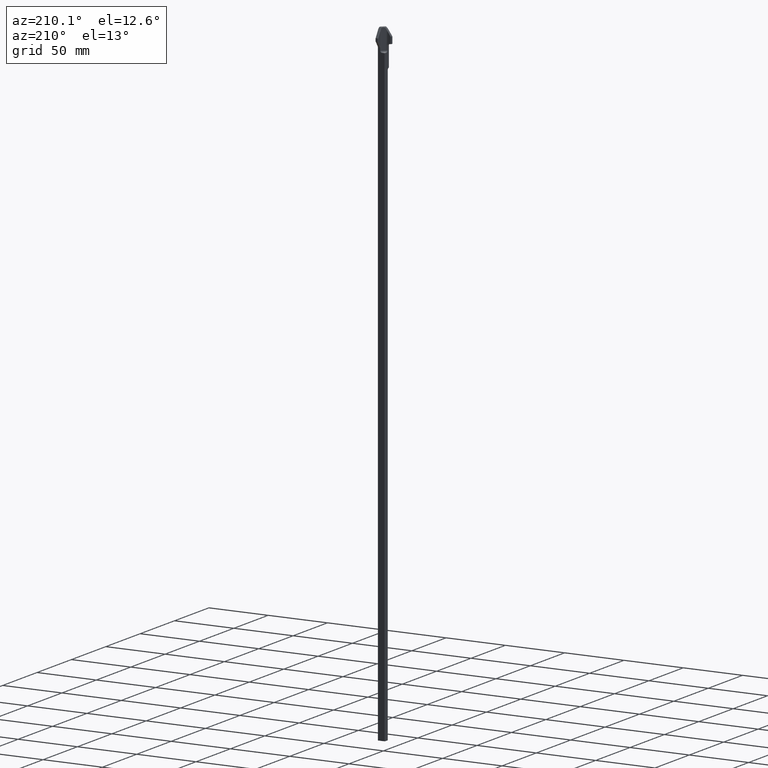
[diagram: clean part render]
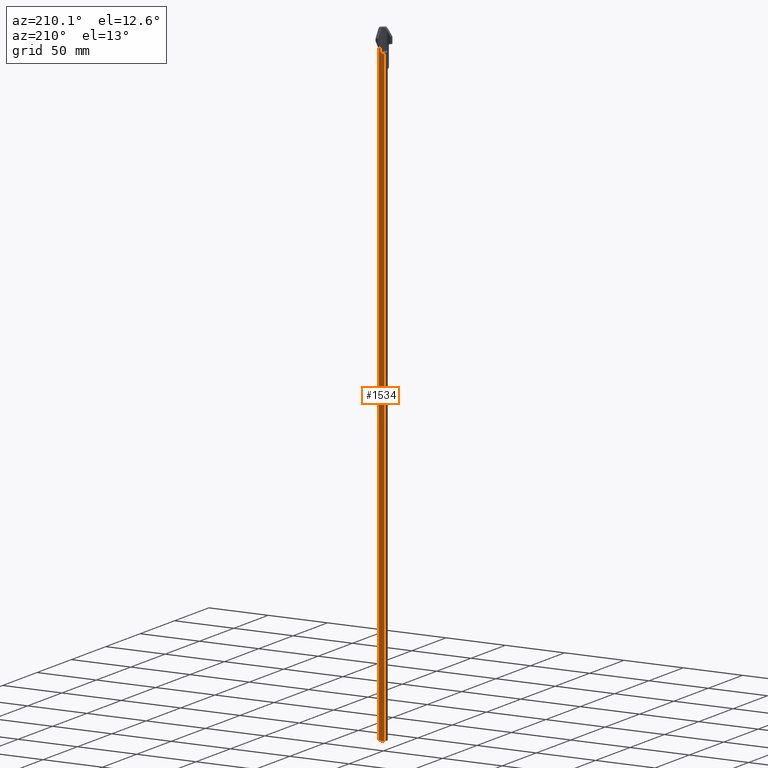
[diagram: same view with one face highlighted and labeled with its STEP entity id]
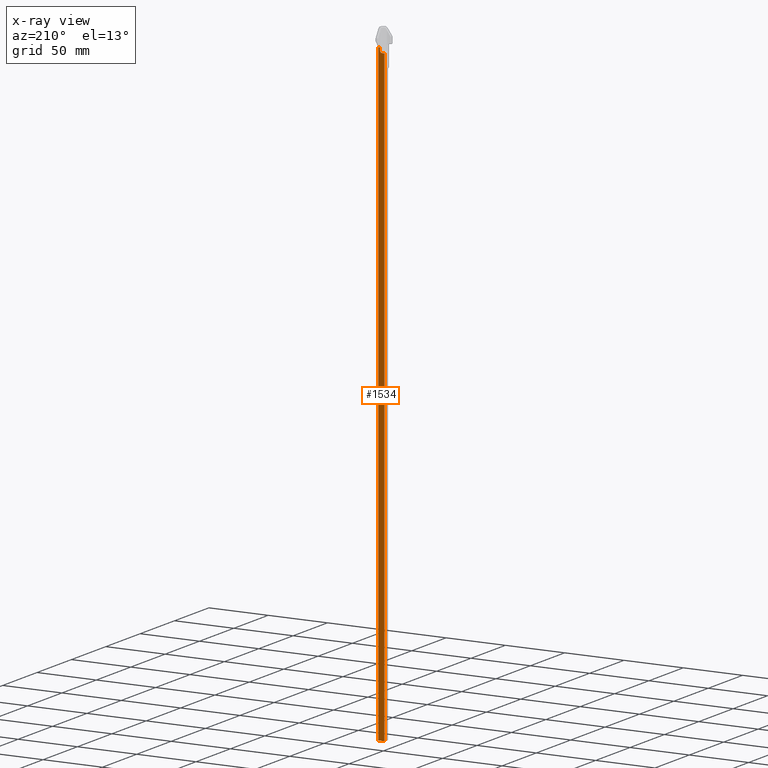
[diagram: x-ray of the same camera — body ghosted, the highlighted face saturated]
A machine part, auxiliary view. The second image highlights one B-rep face of the part: STEP entity #1534.
The next image is the same camera in x-ray: the body ghosted, the highlighted face saturated — about 0% of this face is hidden behind the body in this view.
In plain terms, the highlighted planar face has unit normal (0, 1, 0).
Its self-contained STEP definition (entity closure, byte-faithful):
#139=DIRECTION('',(0.E0,0.E0,-1.E0));
#140=VECTOR('',#139,2.040152619276E1);
#141=CARTESIAN_POINT('',(1.035E-1,1.185E-1,1.641526192757E0));
#142=LINE('',#141,#140);
#143=DIRECTION('',(-4.324216991860E-11,8.316499926603E-11,-1.E0));
#144=VECTOR('',#143,2.024000002557E1);
#145=CARTESIAN_POINT('',(-1.034999991248E-1,1.184999983167E-1,
1.480000025565E0));
#146=LINE('',#145,#144);
#147=DIRECTION('',(-9.999999999924E-1,8.927797175226E-7,-3.800525265771E-6));
#148=VECTOR('',#147,4.988113307510E-2);
#149=CARTESIAN_POINT('',(9.75E-2,1.185E-1,1.64E0));
#150=LINE('',#149,#148);
#151=CARTESIAN_POINT('',(4.591010959023E-2,1.185E-1,1.640120507544E0));
#152=CARTESIAN_POINT('',(4.619415244976E-2,1.185E-1,1.640079860424E0));
#153=CARTESIAN_POINT('',(4.676546394359E-2,1.184999777336E-1,1.640018983560E0));
#154=CARTESIAN_POINT('',(4.733209706318E-2,1.185000445329E-1,1.639999828840E0));
#155=CARTESIAN_POINT('',(4.761886692528E-2,1.185000445329E-1,1.639999810425E0));
#157=DIRECTION('',(-4.260709410089E-10,-3.769946920799E-6,-9.999999999929E-1));
#158=VECTOR('',#157,9.012050751350E-2);
#159=CARTESIAN_POINT('',(4.591010959023E-2,1.185E-1,1.640120507544E0));
#160=LINE('',#159,#158);
#161=CARTESIAN_POINT('',(4.591010955183E-2,1.184996602505E-1,1.550000000031E0));
#162=CARTESIAN_POINT('',(4.590967102702E-2,1.184995306203E-1,1.544291676959E0));
#163=CARTESIAN_POINT('',(4.449217098197E-2,1.185002178440E-1,1.533737795255E0));
#164=CARTESIAN_POINT('',(3.960345239422E-2,1.184999416156E-1,1.520456442734E0));
#165=CARTESIAN_POINT('',(3.308781882187E-2,1.185000156937E-1,1.509764345685E0));
#166=CARTESIAN_POINT('',(2.572522049596E-2,1.184999956096E-1,1.501360811497E0));
#167=CARTESIAN_POINT('',(1.805872222093E-2,1.185000018678E-1,1.494931736620E0));
#168=CARTESIAN_POINT('',(1.044200761983E-2,1.184999969193E-1,1.490143220981E0));
#169=CARTESIAN_POINT('',(3.107764467510E-3,1.185000104550E-1,1.486691013408E0));
#170=CARTESIAN_POINT('',(-3.789386163163E-3,1.184999612605E-1,
1.484304835241E0));
#171=CARTESIAN_POINT('',(-8.007279257991E-3,1.185000834221E-1,
1.483267127245E0));
#172=CARTESIAN_POINT('',(-1.001828996153E-2,1.185000430651E-1,
1.482848633791E0));
#174=CARTESIAN_POINT('',(-1.001828996153E-2,1.185000430651E-1,
1.482848633791E0));
#175=CARTESIAN_POINT('',(-1.451157447569E-2,1.185000310364E-1,
1.481913469558E0));
#176=CARTESIAN_POINT('',(-2.366117969274E-2,1.185000017370E-1,
1.480495904775E0));
#177=CARTESIAN_POINT('',(-3.314608292873E-2,1.184999654896E-1,
1.480000077479E0));
#178=CARTESIAN_POINT('',(-3.797160876839E-2,1.185000250096E-1,1.48E0));
#180=DIRECTION('',(-9.999999999998E-1,-4.073480180286E-7,3.901393076517E-7));
#181=VECTOR('',#180,6.552839035640E-2);
#182=CARTESIAN_POINT('',(-3.797160876839E-2,1.185000250096E-1,1.48E0));
#183=LINE('',#182,#181);
#276=DIRECTION('',(1.E0,0.E0,-1.716286801353E-14));
#277=VECTOR('',#276,2.07E-1);
#278=CARTESIAN_POINT('',(-1.035E-1,1.185E-1,-1.876E1));
#279=LINE('',#278,#277);
#1093=CARTESIAN_POINT('',(9.75E-2,1.185E-1,1.64E0));
#1094=CARTESIAN_POINT('',(9.962432194699E-2,1.185E-1,1.64E0));
#1095=CARTESIAN_POINT('',(1.016151080532E-1,1.185E-1,1.640546434581E0));
#1096=CARTESIAN_POINT('',(1.035E-1,1.185E-1,1.641526192757E0));
#1184=VERTEX_POINT('',#161);
#1185=VERTEX_POINT('',#172);
#1186=CARTESIAN_POINT('',(-3.797160876839E-2,1.185000250096E-1,1.48E0));
#1187=CARTESIAN_POINT('',(-1.034999991248E-1,1.184999983167E-1,
1.480000025565E0));
#1188=VERTEX_POINT('',#1186);
#1189=VERTEX_POINT('',#1187);
#1287=CARTESIAN_POINT('',(9.75E-2,1.185E-1,1.64E0));
#1288=VERTEX_POINT('',#1287);
#1345=VERTEX_POINT('',#151);
#1346=VERTEX_POINT('',#155);
#1348=VERTEX_POINT('',#1096);
#1354=CARTESIAN_POINT('',(-1.035E-1,1.185E-1,-1.876E1));
#1356=VERTEX_POINT('',#1354);
#1357=CARTESIAN_POINT('',(1.035E-1,1.185E-1,-1.876E1));
#1358=VERTEX_POINT('',#1357);
#1508=CARTESIAN_POINT('',(1.185E-1,1.185E-1,-1.5E0));
#1509=DIRECTION('',(0.E0,1.E0,0.E0));
#1510=DIRECTION('',(-1.E0,0.E0,0.E0));
#1511=AXIS2_PLACEMENT_3D('',#1508,#1509,#1510);
#1512=PLANE('',#1511);
#1514=ORIENTED_EDGE('',*,*,#1513,.T.);
#1516=ORIENTED_EDGE('',*,*,#1515,.T.);
#1517=ORIENTED_EDGE('',*,*,#1498,.F.);
#1519=ORIENTED_EDGE('',*,*,#1518,.F.);
#1521=ORIENTED_EDGE('',*,*,#1520,.T.);
#1523=ORIENTED_EDGE('',*,*,#1522,.F.);
#1525=ORIENTED_EDGE('',*,*,#1524,.T.);
#1527=ORIENTED_EDGE('',*,*,#1526,.T.);
#1529=ORIENTED_EDGE('',*,*,#1528,.T.);
#1531=ORIENTED_EDGE('',*,*,#1530,.T.);
#1532=EDGE_LOOP('',(#1514,#1516,#1517,#1519,#1521,#1523,#1525,#1527,#1529,
#1531));
#1533=FACE_OUTER_BOUND('',#1532,.F.);
#1534=ADVANCED_FACE('',(#1533),#1512,.T.);
#156=B_SPLINE_CURVE_WITH_KNOTS('',3,(#151,#152,#153,#154,#155),.UNSPECIFIED.,
.T.,.F.,(4,1,4),(0.E0,5.E-1,1.E0),.UNSPECIFIED.);
#173=B_SPLINE_CURVE_WITH_KNOTS('',3,(#161,#162,#163,#164,#165,#166,#167,#168,
#169,#170,#171,#172),.UNSPECIFIED.,.F.,.F.,(4,1,1,1,1,1,1,1,1,4),(0.E0,
1.111111111111E-1,2.222222222222E-1,3.333333333333E-1,4.444444444444E-1,
5.555555555556E-1,6.666666666667E-1,7.777777777778E-1,8.888888888889E-1,1.E0),
.UNSPECIFIED.);
#179=B_SPLINE_CURVE_WITH_KNOTS('',3,(#174,#175,#176,#177,#178),.UNSPECIFIED.,
.F.,.F.,(4,1,4),(0.E0,5.E-1,1.E0),.UNSPECIFIED.);
#1097=B_SPLINE_CURVE_WITH_KNOTS('',3,(#1093,#1094,#1095,#1096),.UNSPECIFIED.,
.F.,.F.,(4,4),(0.E0,1.E0),.UNSPECIFIED.);
#1498=EDGE_CURVE('',#1348,#1358,#142,.T.);
#1513=EDGE_CURVE('',#1189,#1356,#146,.T.);
#1515=EDGE_CURVE('',#1356,#1358,#279,.T.);
#1518=EDGE_CURVE('',#1288,#1348,#1097,.T.);
#1520=EDGE_CURVE('',#1288,#1346,#150,.T.);
#1522=EDGE_CURVE('',#1345,#1346,#156,.T.);
#1524=EDGE_CURVE('',#1345,#1184,#160,.T.);
#1526=EDGE_CURVE('',#1184,#1185,#173,.T.);
#1528=EDGE_CURVE('',#1185,#1188,#179,.T.);
#1530=EDGE_CURVE('',#1188,#1189,#183,.T.);